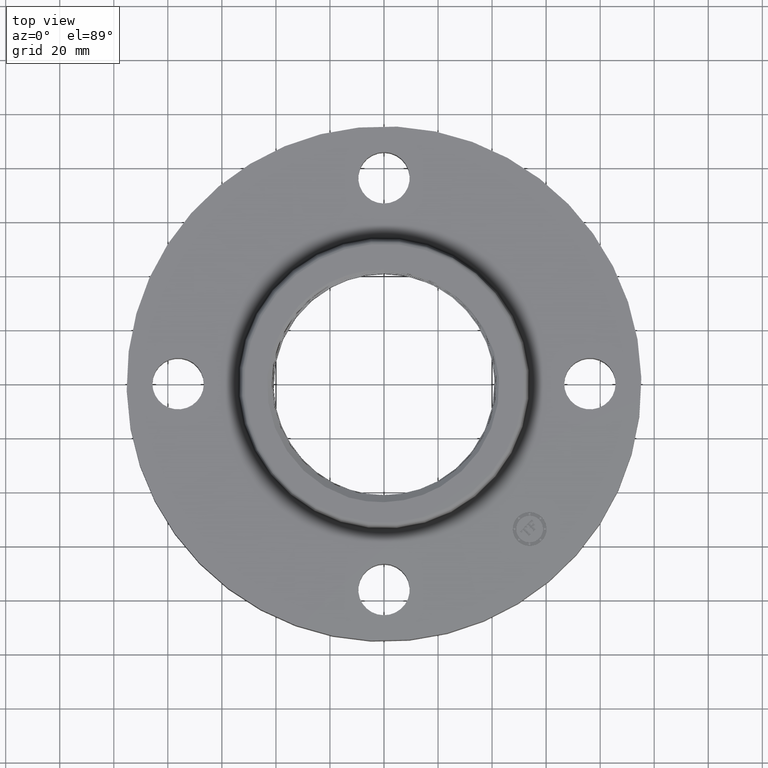
[diagram: clean part render]
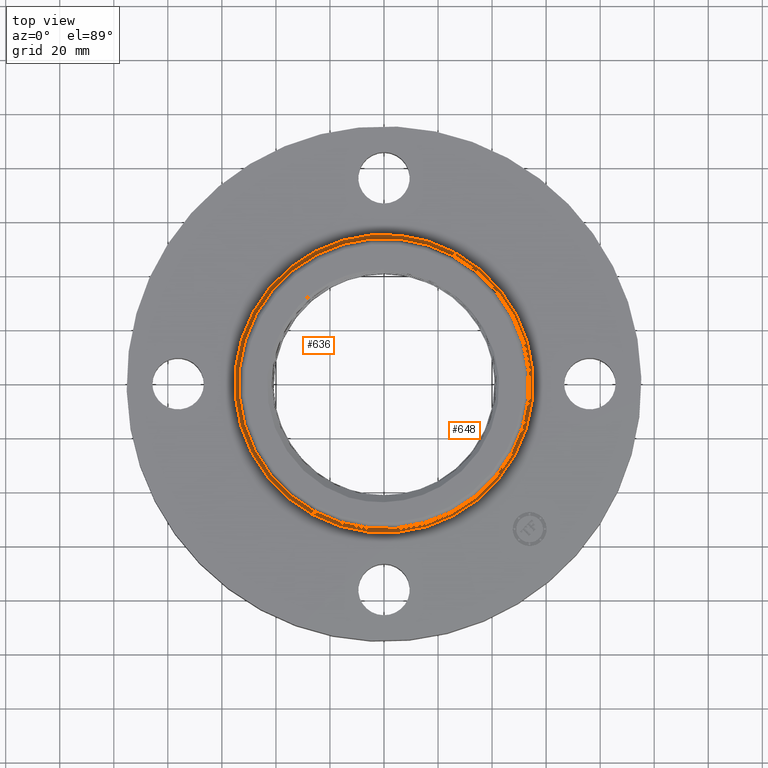
[diagram: same view with one multi-face feature highlighted, each face labeled with its STEP entity id]
A machine part, top view. The highlighted faces form ONE feature: a constant-radius fillet chain: 2 tangent blend faces with common blend radius 1.524 mm. The faces share edges in the B-rep.
Their STEP definitions:
[1] entity #648 (Torus):
#596=AXIS2_PLACEMENT_3D('Circle Axis2P3D',#594,#595,$) ;
#609=AXIS2_PLACEMENT_3D('Torus Axis2P3D',#606,#607,#608) ;
#622=AXIS2_PLACEMENT_3D('Circle Axis2P3D',#620,#621,$) ;
#627=AXIS2_PLACEMENT_3D('Circle Axis2P3D',#625,#626,$) ;
#639=AXIS2_PLACEMENT_3D('Circle Axis2P3D',#637,#638,$) ;
#572=CARTESIAN_POINT('Vertex',(-1.01458789785,-1.85719068961,0.929581109344)) ;
#574=CARTESIAN_POINT('Vertex',(1.01458789785,1.85719068961,0.929581109344)) ;
#594=CARTESIAN_POINT('Axis2P3D Location',(0.,0.,0.929581109344)) ;
#606=CARTESIAN_POINT('Axis2P3D Location',(0.,0.,0.940000000004)) ;
#615=CARTESIAN_POINT('Vertex',(-1.0429164171,-1.90904569627,0.880000000004)) ;
#617=CARTESIAN_POINT('Vertex',(1.0429164171,1.90904569627,0.880000000004)) ;
#620=CARTESIAN_POINT('Axis2P3D Location',(-1.0429164171,-1.90904569627,0.940000000004)) ;
#625=CARTESIAN_POINT('Axis2P3D Location',(1.0429164171,1.90904569627,0.940000000004)) ;
#637=CARTESIAN_POINT('Axis2P3D Location',(0.,0.,0.880000000004)) ;
#595=DIRECTION('Axis2P3D Direction',(0.,0.,-0.0393700787402)) ;
#607=DIRECTION('Axis2P3D Direction',(0.,0.,-0.0393700787402)) ;
#608=DIRECTION('Axis2P3D XDirection',(0.0188750212049,0.0345504945626,0.)) ;
#621=DIRECTION('Axis2P3D Direction',(0.0345504945626,-0.0188750212049,0.)) ;
#626=DIRECTION('Axis2P3D Direction',(-0.0345504945626,0.0188750212049,0.)) ;
#638=DIRECTION('Axis2P3D Direction',(0.,0.,-0.0393700787402)) ;
#643=ORIENTED_EDGE('',*,*,#641,.F.) ;
#644=ORIENTED_EDGE('',*,*,#629,.T.) ;
#645=ORIENTED_EDGE('',*,*,#598,.T.) ;
#646=ORIENTED_EDGE('',*,*,#624,.F.) ;
#648=ADVANCED_FACE('PartBody',(#647),#610,.F.) ;
#597=CIRCLE('generated circle',#596,2.1162575127) ;
#623=CIRCLE('generated circle',#622,0.0600000000002) ;
#628=CIRCLE('generated circle',#627,0.0600000000002) ;
#640=CIRCLE('generated circle',#639,2.17534597788) ;
#610=TOROIDAL_SURFACE('homeo Torus',#609,2.17534597788,0.0600000000002) ;
#598=EDGE_CURVE('',#575,#573,#597,.T.) ;
#624=EDGE_CURVE('',#616,#573,#623,.T.) ;
#629=EDGE_CURVE('',#618,#575,#628,.T.) ;
#641=EDGE_CURVE('',#618,#616,#640,.T.) ;
#642=EDGE_LOOP('',(#643,#644,#645,#646)) ;
#647=FACE_OUTER_BOUND('',#642,.T.) ;
#573=VERTEX_POINT('',#572) ;
#575=VERTEX_POINT('',#574) ;
#616=VERTEX_POINT('',#615) ;
#618=VERTEX_POINT('',#617) ;
[2] entity #636 (Torus):
#570=AXIS2_PLACEMENT_3D('Circle Axis2P3D',#568,#569,$) ;
#609=AXIS2_PLACEMENT_3D('Torus Axis2P3D',#606,#607,#608) ;
#613=AXIS2_PLACEMENT_3D('Circle Axis2P3D',#611,#612,$) ;
#622=AXIS2_PLACEMENT_3D('Circle Axis2P3D',#620,#621,$) ;
#627=AXIS2_PLACEMENT_3D('Circle Axis2P3D',#625,#626,$) ;
#568=CARTESIAN_POINT('Axis2P3D Location',(0.,0.,0.929581109344)) ;
#572=CARTESIAN_POINT('Vertex',(-1.01458789785,-1.85719068961,0.929581109344)) ;
#574=CARTESIAN_POINT('Vertex',(1.01458789785,1.85719068961,0.929581109344)) ;
#606=CARTESIAN_POINT('Axis2P3D Location',(0.,0.,0.940000000004)) ;
#611=CARTESIAN_POINT('Axis2P3D Location',(0.,0.,0.880000000004)) ;
#615=CARTESIAN_POINT('Vertex',(-1.0429164171,-1.90904569627,0.880000000004)) ;
#617=CARTESIAN_POINT('Vertex',(1.0429164171,1.90904569627,0.880000000004)) ;
#620=CARTESIAN_POINT('Axis2P3D Location',(-1.0429164171,-1.90904569627,0.940000000004)) ;
#625=CARTESIAN_POINT('Axis2P3D Location',(1.0429164171,1.90904569627,0.940000000004)) ;
#569=DIRECTION('Axis2P3D Direction',(0.,0.,-0.0393700787402)) ;
#607=DIRECTION('Axis2P3D Direction',(0.,0.,-0.0393700787402)) ;
#608=DIRECTION('Axis2P3D XDirection',(0.0188750212049,0.0345504945626,0.)) ;
#612=DIRECTION('Axis2P3D Direction',(0.,0.,-0.0393700787402)) ;
#621=DIRECTION('Axis2P3D Direction',(0.0345504945626,-0.0188750212049,0.)) ;
#626=DIRECTION('Axis2P3D Direction',(-0.0345504945626,0.0188750212049,0.)) ;
#631=ORIENTED_EDGE('',*,*,#619,.F.) ;
#632=ORIENTED_EDGE('',*,*,#624,.T.) ;
#633=ORIENTED_EDGE('',*,*,#576,.T.) ;
#634=ORIENTED_EDGE('',*,*,#629,.F.) ;
#636=ADVANCED_FACE('PartBody',(#635),#610,.F.) ;
#571=CIRCLE('generated circle',#570,2.1162575127) ;
#614=CIRCLE('generated circle',#613,2.17534597788) ;
#623=CIRCLE('generated circle',#622,0.0600000000002) ;
#628=CIRCLE('generated circle',#627,0.0600000000002) ;
#610=TOROIDAL_SURFACE('homeo Torus',#609,2.17534597788,0.0600000000002) ;
#576=EDGE_CURVE('',#573,#575,#571,.T.) ;
#619=EDGE_CURVE('',#616,#618,#614,.T.) ;
#624=EDGE_CURVE('',#616,#573,#623,.T.) ;
#629=EDGE_CURVE('',#618,#575,#628,.T.) ;
#630=EDGE_LOOP('',(#631,#632,#633,#634)) ;
#635=FACE_OUTER_BOUND('',#630,.T.) ;
#573=VERTEX_POINT('',#572) ;
#575=VERTEX_POINT('',#574) ;
#616=VERTEX_POINT('',#615) ;
#618=VERTEX_POINT('',#617) ;